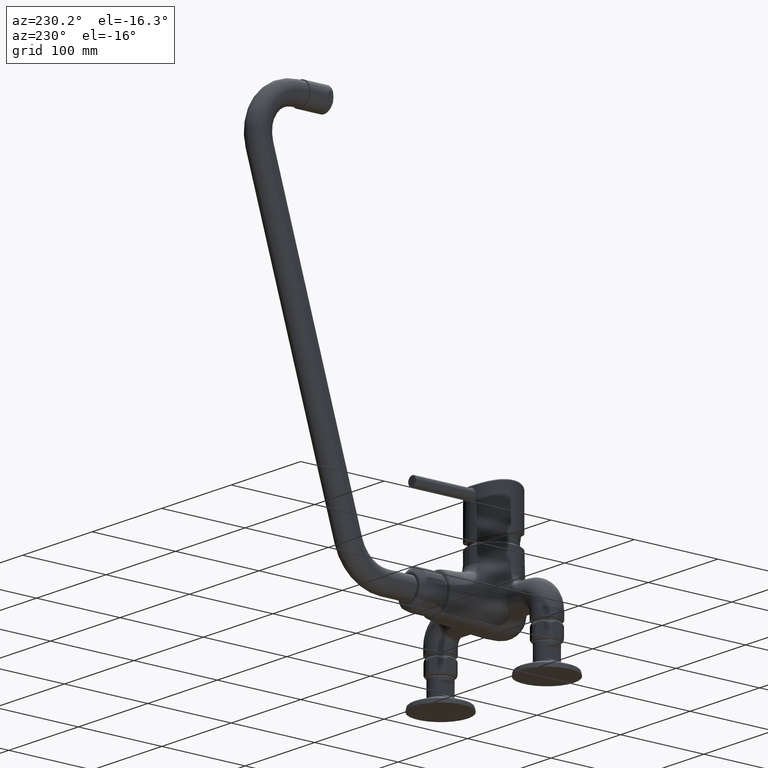
[diagram: clean part render]
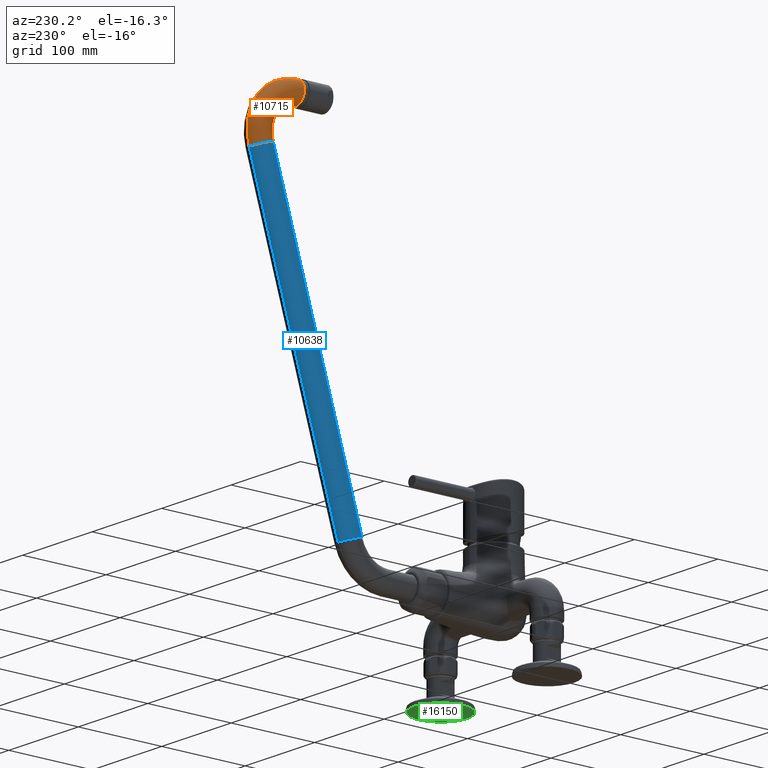
[diagram: same view with three faces highlighted in distinct colors, each labeled with its STEP entity id]
A machine part, auxiliary view with three faces highlighted in distinct colors.
Their STEP definitions:

[orange] entity #10715 — the highlighted toroidal blend (fillet) surface has major radius 45 mm and minor (blend) radius 13 mm.
#3980=CARTESIAN_POINT('',(0.E0,2.896477619363E2,4.050368104430E2));
#3981=DIRECTION('',(1.E0,0.E0,0.E0));
#3982=DIRECTION('',(0.E0,9.588197348682E-1,-2.840153447039E-1));
#3983=AXIS2_PLACEMENT_3D('',#3980,#3981,#3982);
#3985=CARTESIAN_POINT('',(0.E0,3.327946500054E2,3.922561199313E2));
#3986=DIRECTION('',(0.E0,2.840153447039E-1,9.588197348682E-1));
#3987=DIRECTION('',(0.E0,9.588197348682E-1,-2.840153447039E-1));
#3988=AXIS2_PLACEMENT_3D('',#3985,#3986,#3987);
#3990=CARTESIAN_POINT('',(0.E0,2.896477619363E2,4.050368104430E2));
#3991=DIRECTION('',(1.E0,0.E0,0.E0));
#3992=DIRECTION('',(0.E0,9.588197348682E-1,-2.840153447039E-1));
#3993=AXIS2_PLACEMENT_3D('',#3990,#3991,#3992);
#4000=CARTESIAN_POINT('',(0.E0,2.896477619363E2,4.500368104430E2));
#4001=DIRECTION('',(0.E0,-1.E0,0.E0));
#4002=DIRECTION('',(0.E0,0.E0,1.E0));
#4003=AXIS2_PLACEMENT_3D('',#4000,#4001,#4002);
#4582=CARTESIAN_POINT('',(0.E0,3.452593065587E2,3.885639204502E2));
#4583=CARTESIAN_POINT('',(0.E0,3.203299934521E2,3.959483194125E2));
#4584=VERTEX_POINT('',#4582);
#4585=VERTEX_POINT('',#4583);
#4586=CARTESIAN_POINT('',(0.E0,2.896477619363E2,4.630368104430E2));
#4587=CARTESIAN_POINT('',(0.E0,2.896477619363E2,4.370368104430E2));
#4588=VERTEX_POINT('',#4586);
#4589=VERTEX_POINT('',#4587);
#10703=CARTESIAN_POINT('',(0.E0,2.896477619363E2,4.050368104430E2));
#10704=DIRECTION('',(1.E0,0.E0,0.E0));
#10705=DIRECTION('',(0.E0,-9.588197348682E-1,2.840153447039E-1));
#10706=AXIS2_PLACEMENT_3D('',#10703,#10704,#10705);
#10707=TOROIDAL_SURFACE('',#10706,4.5E1,1.3E1);
#10708=ORIENTED_EDGE('',*,*,#10632,.F.);
#10709=ORIENTED_EDGE('',*,*,#10686,.T.);
#10711=ORIENTED_EDGE('',*,*,#10710,.T.);
#10712=ORIENTED_EDGE('',*,*,#10682,.F.);
#10713=EDGE_LOOP('',(#10708,#10709,#10711,#10712));
#10714=FACE_OUTER_BOUND('',#10713,.F.);
#3984=CIRCLE('',#3983,3.2E1);
#3989=CIRCLE('',#3988,1.3E1);
#3994=CIRCLE('',#3993,5.8E1);
#4004=CIRCLE('',#4003,1.3E1);
#10632=EDGE_CURVE('',#4584,#4585,#3989,.T.);
#10682=EDGE_CURVE('',#4585,#4589,#3984,.T.);
#10686=EDGE_CURVE('',#4584,#4588,#3994,.T.);
#10710=EDGE_CURVE('',#4588,#4589,#4004,.T.);
#10715=ADVANCED_FACE('',(#10714),#10707,.T.);

[blue] entity #10638 — the highlighted cylindrical surface (edge-blend (fillet) strip) has radius 13 mm, axis along (0, 0.284, 0.9588).
#3957=CARTESIAN_POINT('',(0.E0,2.261468880691E2,3.221930948832E1));
#3958=DIRECTION('',(0.E0,2.840153447039E-1,9.588197348682E-1));
#3959=DIRECTION('',(0.E0,9.588197348682E-1,-2.840153447039E-1));
#3960=AXIS2_PLACEMENT_3D('',#3957,#3958,#3959);
#3962=DIRECTION('',(0.E0,2.840153447039E-1,9.588197348682E-1));
#3963=VECTOR('',#3962,3.755E2);
#3964=CARTESIAN_POINT('',(0.E0,2.386115446224E2,2.852711000717E1));
#3965=LINE('',#3964,#3963);
#3971=DIRECTION('',(0.E0,2.840153447039E-1,9.588197348682E-1));
#3972=VECTOR('',#3971,3.755E2);
#3973=CARTESIAN_POINT('',(0.E0,2.136822315158E2,3.591150896947E1));
#3974=LINE('',#3973,#3972);
#3985=CARTESIAN_POINT('',(0.E0,3.327946500054E2,3.922561199313E2));
#3986=DIRECTION('',(0.E0,2.840153447039E-1,9.588197348682E-1));
#3987=DIRECTION('',(0.E0,9.588197348682E-1,-2.840153447039E-1));
#3988=AXIS2_PLACEMENT_3D('',#3985,#3986,#3987);
#4578=CARTESIAN_POINT('',(0.E0,2.386115446224E2,2.852711000717E1));
#4579=CARTESIAN_POINT('',(0.E0,2.136822315158E2,3.591150896947E1));
#4580=VERTEX_POINT('',#4578);
#4581=VERTEX_POINT('',#4579);
#4582=CARTESIAN_POINT('',(0.E0,3.452593065587E2,3.885639204502E2));
#4583=CARTESIAN_POINT('',(0.E0,3.203299934521E2,3.959483194125E2));
#4584=VERTEX_POINT('',#4582);
#4585=VERTEX_POINT('',#4583);
#10624=CARTESIAN_POINT('',(0.E0,2.261468880691E2,3.221930948832E1));
#10625=DIRECTION('',(0.E0,2.840153447039E-1,9.588197348682E-1));
#10626=DIRECTION('',(0.E0,9.588197348682E-1,-2.840153447039E-1));
#10627=AXIS2_PLACEMENT_3D('',#10624,#10625,#10626);
#10628=CYLINDRICAL_SURFACE('',#10627,1.3E1);
#10629=ORIENTED_EDGE('',*,*,#10606,.F.);
#10631=ORIENTED_EDGE('',*,*,#10630,.T.);
#10633=ORIENTED_EDGE('',*,*,#10632,.T.);
#10635=ORIENTED_EDGE('',*,*,#10634,.F.);
#10636=EDGE_LOOP('',(#10629,#10631,#10633,#10635));
#10637=FACE_OUTER_BOUND('',#10636,.F.);
#3961=CIRCLE('',#3960,1.3E1);
#3989=CIRCLE('',#3988,1.3E1);
#10606=EDGE_CURVE('',#4580,#4581,#3961,.T.);
#10630=EDGE_CURVE('',#4580,#4584,#3965,.T.);
#10632=EDGE_CURVE('',#4584,#4585,#3989,.T.);
#10634=EDGE_CURVE('',#4581,#4585,#3974,.T.);
#10638=ADVANCED_FACE('',(#10637),#10628,.T.);

[green] entity #16150 — the highlighted planar face has unit normal (0, 0, -1).
#15639=CARTESIAN_POINT('',(7.65E1,5.2E1,-8.26E1));
#15640=DIRECTION('',(0.E0,0.E0,1.E0));
#15641=DIRECTION('',(0.E0,-1.E0,0.E0));
#15642=AXIS2_PLACEMENT_3D('',#15639,#15640,#15641);
#15644=CARTESIAN_POINT('',(7.65E1,5.2E1,-8.26E1));
#15645=DIRECTION('',(0.E0,0.E0,-1.E0));
#15646=DIRECTION('',(0.E0,-1.E0,0.E0));
#15647=AXIS2_PLACEMENT_3D('',#15644,#15645,#15646);
#15823=CARTESIAN_POINT('',(7.65E1,2.035069227294E1,-8.26E1));
#15825=VERTEX_POINT('',#15823);
#15827=CARTESIAN_POINT('',(7.65E1,8.364930772706E1,-8.26E1));
#15829=VERTEX_POINT('',#15827);
#16141=CARTESIAN_POINT('',(7.65E1,5.2E1,-8.26E1));
#16142=DIRECTION('',(0.E0,0.E0,-1.E0));
#16143=DIRECTION('',(-1.E0,0.E0,0.E0));
#16144=AXIS2_PLACEMENT_3D('',#16141,#16142,#16143);
#16145=PLANE('',#16144);
#16146=ORIENTED_EDGE('',*,*,#16122,.F.);
#16147=ORIENTED_EDGE('',*,*,#16099,.T.);
#16148=EDGE_LOOP('',(#16146,#16147));
#16149=FACE_OUTER_BOUND('',#16148,.F.);
#15643=CIRCLE('',#15642,3.164930772706E1);
#15648=CIRCLE('',#15647,3.164930772706E1);
#16099=EDGE_CURVE('',#15825,#15829,#15643,.T.);
#16122=EDGE_CURVE('',#15825,#15829,#15648,.T.);
#16150=ADVANCED_FACE('',(#16149),#16145,.T.);